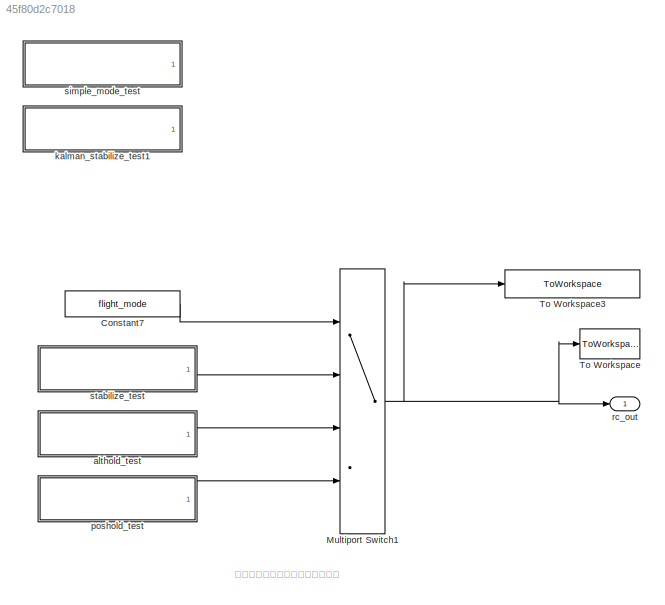
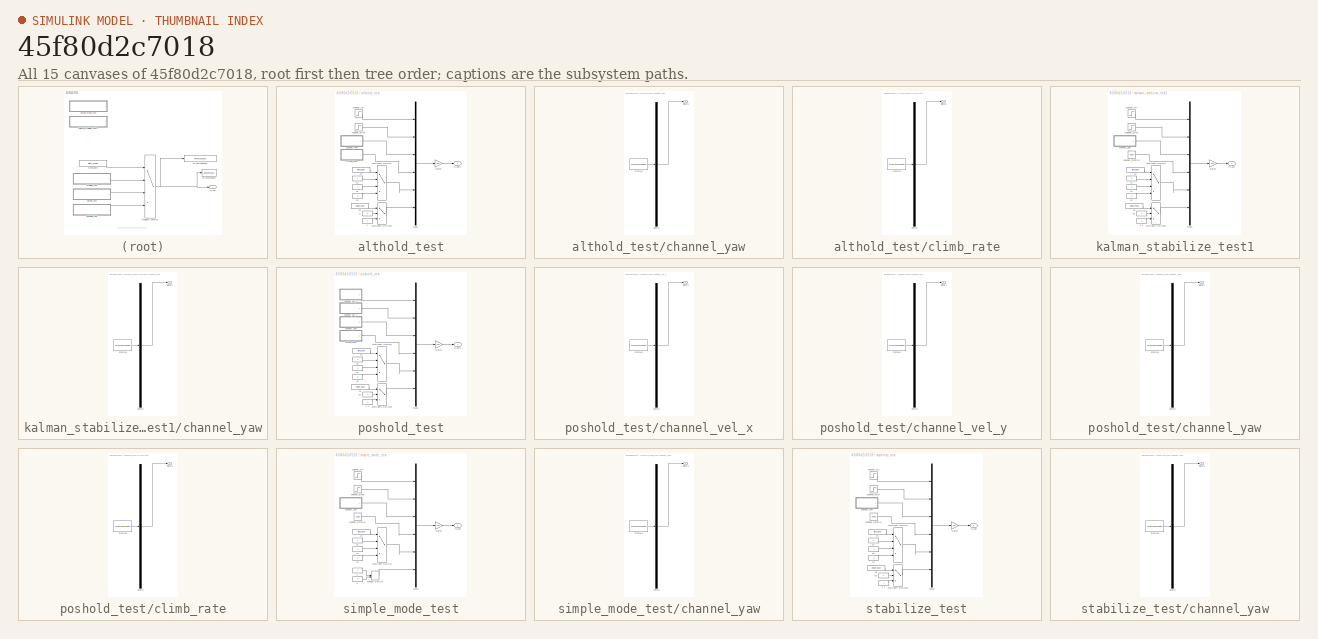
[diagram: thumbnail index - all 15 canvases of the model, root first then tree order]
MODEL slx_45f80d2c7018
KIND model
BLOCK [Constant] Constant7
  SampleTime = 0.0025
  Value = flight_mode
BLOCK [MultiPortSwitch] Multiport Switch1
  InputSameDT = off
  Ports = [4, 1]
  SaturateOnIntegerOverflow = off
BLOCK [ToWorkspace] To Workspace
  MaxDataPoints = inf
  Ports = [1]
  SampleTime = -1
  SaveFormat = Structure
  VariableName = simout
BLOCK [ToWorkspace] To Workspace3
  MaxDataPoints = inf
  Ports = [1]
  SampleTime = -1
  SaveFormat = Structure
  VariableName = rc_out
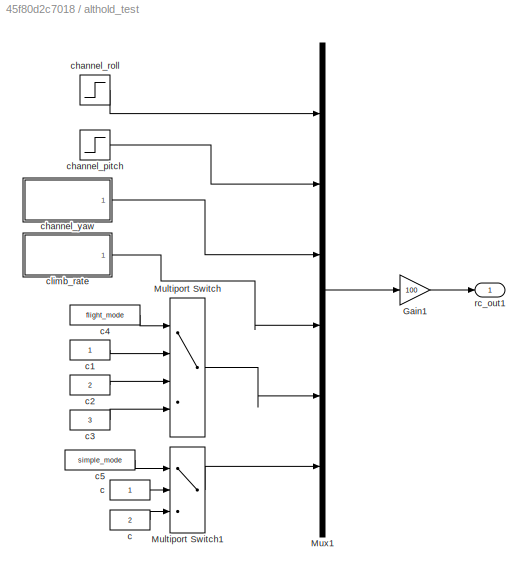
BLOCK [SubSystem] althold_test
  Ports = [0, 1]
  RequestExecContextInheritance = off
BLOCK [Gain] althold_test/Gain1
  Gain = 100
  OutDataTypeStr = Inherit: Inherit via internal rule
  ParamDataTypeStr = Inherit: Inherit via internal rule
  SampleTime = 0.0025
  SaturateOnIntegerOverflow = off
BLOCK [MultiPortSwitch] althold_test/Multiport Switch
  InputSameDT = off
  Ports = [4, 1]
  SaturateOnIntegerOverflow = off
BLOCK [MultiPortSwitch] althold_test/Multiport Switch1
  InputSameDT = off
  Inputs = 2
  Ports = [3, 1]
  SaturateOnIntegerOverflow = off
BLOCK [Mux] althold_test/Mux1
  DisplayOption = bar
  Inputs = 6
  Ports = [6, 1]
BLOCK [Constant] althold_test/c
  SampleTime = -1
BLOCK [Constant] althold_test/c 
  SampleTime = -1
  Value = 2
BLOCK [Constant] althold_test/c1
  SampleTime = -1
BLOCK [Constant] althold_test/c2
  SampleTime = -1
  Value = 2
BLOCK [Constant] althold_test/c3
  SampleTime = -1
  Value = 3
BLOCK [Constant] althold_test/c4
  SampleTime = -1
  Value = flight_mode
BLOCK [Constant] althold_test/c5
  SampleTime = -1
  Value = simple_mode
BLOCK [Step] althold_test/channel_pitch
  After = 15
  SampleTime = 0.0025
  Time = 2.5
BLOCK [Step] althold_test/channel_roll
  After = 25
  SampleTime = 0.0025
  Time = 2
BLOCK [SubSystem] althold_test/channel_yaw
  ClipboardFcn = sigbuilder_block('clipboard');
  CloseFcn = sigbuilder_block('close');
  ContinueFcn = sigbuilder_block('continue')
  CopyFcn = sigbuilder_block('copy');
  DeleteFcn = sigbuilder_block('delete');
  LoadFcn = sigbuilder_block('load');
  MaskHideContents = on
  ModelCloseFcn = sigbuilder_block('modelClose');
  NameChangeFcn = sigbuilder_block('namechange');
  OpenFcn = sigbuilder_block('open',[437.25 117.75 550.5 393.75 ]);
  PauseFcn = sigbuilder_block('pause')
  Ports = [0, 1]
  PreSaveFcn = sigbuilder_block('preSave');
  RequestExecContextInheritance = off
  StartFcn = sigbuilder_block('start');
  StopFcn = sigbuilder_block('stop');
  Tag = STV Subsys
BLOCK [Demux] althold_test/channel_yaw/Demux
  Outputs = 1
  Ports = [1, 1]
  Tag = STV Demux
BLOCK [FromWorkspace] althold_test/channel_yaw/FromWs
  SampleTime = 0
  Tag = STV FromWs
  VariableName = tuvar
  ZeroCross = on
BLOCK [Outport] althold_test/channel_yaw/Signal 1
  IconDisplay = Port number
  Tag = STV Outport
BLOCK [SubSystem] althold_test/climb_rate
  ClipboardFcn = sigbuilder_block('clipboard');
  CloseFcn = sigbuilder_block('close');
  ContinueFcn = sigbuilder_block('continue')
  CopyFcn = sigbuilder_block('copy');
  DeleteFcn = sigbuilder_block('delete');
  LoadFcn = sigbuilder_block('load');
  MaskHideContents = on
  ModelCloseFcn = sigbuilder_block('modelClose');
  NameChangeFcn = sigbuilder_block('namechange');
  OpenFcn = sigbuilder_block('open',[437.25 117.75 550.5 393.75 ]);
  PauseFcn = sigbuilder_block('pause')
  Ports = [0, 1]
  PreSaveFcn = sigbuilder_block('preSave');
  RequestExecContextInheritance = off
  StartFcn = sigbuilder_block('start');
  StopFcn = sigbuilder_block('stop');
  Tag = STV Subsys
BLOCK [Demux] althold_test/climb_rate/Demux
  Outputs = 1
  Ports = [1, 1]
  Tag = STV Demux
BLOCK [FromWorkspace] althold_test/climb_rate/FromWs
  SampleTime = 0
  Tag = STV FromWs
  VariableName = tuvar
  ZeroCross = on
BLOCK [Outport] althold_test/climb_rate/Signal 1
  IconDisplay = Port number
  Tag = STV Outport
BLOCK [Outport] althold_test/rc_out1
  IconDisplay = Port number
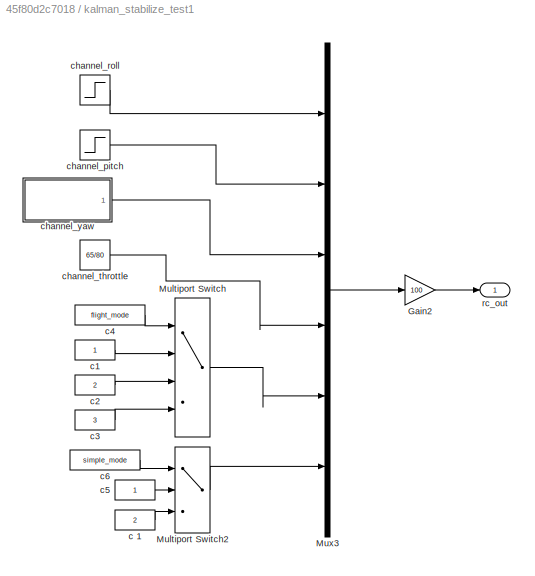
BLOCK [SubSystem] kalman_stabilize_test1
  Ports = [0, 1]
  RequestExecContextInheritance = off
BLOCK [Gain] kalman_stabilize_test1/Gain2
  Gain = 100
  OutDataTypeStr = Inherit: Inherit via internal rule
  ParamDataTypeStr = Inherit: Inherit via internal rule
  SampleTime = 0.0025
  SaturateOnIntegerOverflow = off
BLOCK [MultiPortSwitch] kalman_stabilize_test1/Multiport Switch
  InputSameDT = off
  Ports = [4, 1]
  SaturateOnIntegerOverflow = off
BLOCK [MultiPortSwitch] kalman_stabilize_test1/Multiport Switch2
  InputSameDT = off
  Inputs = 2
  Ports = [3, 1]
  SaturateOnIntegerOverflow = off
BLOCK [Mux] kalman_stabilize_test1/Mux3
  DisplayOption = bar
  Inputs = 6
  Ports = [6, 1]
BLOCK [Constant] kalman_stabilize_test1/c 1
  SampleTime = -1
  Value = 2
BLOCK [Constant] kalman_stabilize_test1/c1
  SampleTime = -1
BLOCK [Constant] kalman_stabilize_test1/c2
  SampleTime = -1
  Value = 2
BLOCK [Constant] kalman_stabilize_test1/c3
  SampleTime = -1
  Value = 3
BLOCK [Constant] kalman_stabilize_test1/c4
  SampleTime = -1
  Value = flight_mode
BLOCK [Constant] kalman_stabilize_test1/c5
  SampleTime = -1
BLOCK [Constant] kalman_stabilize_test1/c6
  SampleTime = -1
  Value = simple_mode
BLOCK [Step] kalman_stabilize_test1/channel_pitch
  After = 35
  SampleTime = 0.0025
  Time = 2.5
BLOCK [Step] kalman_stabilize_test1/channel_roll
  After = 25
  SampleTime = 0.0025
  Time = 2
BLOCK [Constant] kalman_stabilize_test1/channel_throttle
  SampleTime = -1
  Value = 65/80
BLOCK [SubSystem] kalman_stabilize_test1/channel_yaw
  ClipboardFcn = sigbuilder_block('clipboard');
  CloseFcn = sigbuilder_block('close');
  ContinueFcn = sigbuilder_block('continue')
  CopyFcn = sigbuilder_block('copy');
  DeleteFcn = sigbuilder_block('delete');
  LoadFcn = sigbuilder_block('load');
  MaskHideContents = on
  ModelCloseFcn = sigbuilder_block('modelClose');
  NameChangeFcn = sigbuilder_block('namechange');
  OpenFcn = sigbuilder_block('open',[437.25 117.75 550.5 393.75 ]);
  PauseFcn = sigbuilder_block('pause')
  Ports = [0, 1]
  PreSaveFcn = sigbuilder_block('preSave');
  RequestExecContextInheritance = off
  StartFcn = sigbuilder_block('start');
  StopFcn = sigbuilder_block('stop');
  Tag = STV Subsys
BLOCK [Demux] kalman_stabilize_test1/channel_yaw/Demux
  Outputs = 1
  Ports = [1, 1]
  Tag = STV Demux
BLOCK [FromWorkspace] kalman_stabilize_test1/channel_yaw/FromWs
  SampleTime = 0
  Tag = STV FromWs
  VariableName = tuvar
  ZeroCross = on
BLOCK [Outport] kalman_stabilize_test1/channel_yaw/Signal 1
  IconDisplay = Port number
  Tag = STV Outport
BLOCK [Outport] kalman_stabilize_test1/rc_out
  IconDisplay = Port number
BLOCK [SubSystem] poshold_test
  Ports = [0, 1]
  RequestExecContextInheritance = off
BLOCK [Gain] poshold_test/Gain1
  Gain = 100
  OutDataTypeStr = Inherit: Inherit via internal rule
  ParamDataTypeStr = Inherit: Inherit via internal rule
  SampleTime = 0.0025
  SaturateOnIntegerOverflow = off
BLOCK [MultiPortSwitch] poshold_test/Multiport Switch
  InputSameDT = off
  Ports = [4, 1]
  SaturateOnIntegerOverflow = off
BLOCK [MultiPortSwitch] poshold_test/Multiport Switch2
  InputSameDT = off
  Inputs = 2
  Ports = [3, 1]
  SaturateOnIntegerOverflow = off
BLOCK [Mux] poshold_test/Mux1
  DisplayOption = bar
  Inputs = 6
  Ports = [6, 1]
BLOCK [Constant] poshold_test/c 1
  SampleTime = -1
  Value = 2
BLOCK [Constant] poshold_test/c1
  SampleTime = -1
BLOCK [Constant] poshold_test/c2
  SampleTime = -1
  Value = 2
BLOCK [Constant] poshold_test/c3
  SampleTime = -1
  Value = 3
BLOCK [Constant] poshold_test/c4
  SampleTime = -1
  Value = flight_mode
BLOCK [Constant] poshold_test/c5
  SampleTime = -1
BLOCK [Constant] poshold_test/c6
  SampleTime = -1
  Value = simple_mode
BLOCK [SubSystem] poshold_test/channel_vel_x
  ClipboardFcn = sigbuilder_block('clipboard');
  CloseFcn = sigbuilder_block('close');
  ContinueFcn = sigbuilder_block('continue')
  CopyFcn = sigbuilder_block('copy');
  DeleteFcn = sigbuilder_block('delete');
  LoadFcn = sigbuilder_block('load');
  MaskHideContents = on
  ModelCloseFcn = sigbuilder_block('modelClose');
  NameChangeFcn = sigbuilder_block('namechange');
  OpenFcn = sigbuilder_block('open',[437.25 117.75 550.5 393.75 ]);
  PauseFcn = sigbuilder_block('pause')
  Ports = [0, 1]
  PreSaveFcn = sigbuilder_block('preSave');
  RequestExecContextInheritance = off
  StartFcn = sigbuilder_block('start');
  StopFcn = sigbuilder_block('stop');
  Tag = STV Subsys
BLOCK [Demux] poshold_test/channel_vel_x/Demux
  Outputs = 1
  Ports = [1, 1]
  Tag = STV Demux
BLOCK [FromWorkspace] poshold_test/channel_vel_x/FromWs
  SampleTime = 0
  Tag = STV FromWs
  VariableName = tuvar
  ZeroCross = on
BLOCK [Outport] poshold_test/channel_vel_x/Signal 1
  IconDisplay = Port number
  Tag = STV Outport
BLOCK [SubSystem] poshold_test/channel_vel_y 
  ClipboardFcn = sigbuilder_block('clipboard');
  CloseFcn = sigbuilder_block('close');
  ContinueFcn = sigbuilder_block('continue')
  CopyFcn = sigbuilder_block('copy');
  DeleteFcn = sigbuilder_block('delete');
  LoadFcn = sigbuilder_block('load');
  MaskHideContents = on
  ModelCloseFcn = sigbuilder_block('modelClose');
  NameChangeFcn = sigbuilder_block('namechange');
  OpenFcn = sigbuilder_block('open',[437.25 117.75 550.5 393.75 ]);
  PauseFcn = sigbuilder_block('pause')
  Ports = [0, 1]
  PreSaveFcn = sigbuilder_block('preSave');
  RequestExecContextInheritance = off
  StartFcn = sigbuilder_block('start');
  StopFcn = sigbuilder_block('stop');
  Tag = STV Subsys
BLOCK [Demux] poshold_test/channel_vel_y /Demux
  Outputs = 1
  Ports = [1, 1]
  Tag = STV Demux
BLOCK [FromWorkspace] poshold_test/channel_vel_y /FromWs
  SampleTime = 0
  Tag = STV FromWs
  VariableName = tuvar
  ZeroCross = on
BLOCK [Outport] poshold_test/channel_vel_y /Signal 1
  IconDisplay = Port number
  Tag = STV Outport
BLOCK [SubSystem] poshold_test/channel_yaw
  ClipboardFcn = sigbuilder_block('clipboard');
  CloseFcn = sigbuilder_block('close');
  ContinueFcn = sigbuilder_block('continue')
  CopyFcn = sigbuilder_block('copy');
  DeleteFcn = sigbuilder_block('delete');
  LoadFcn = sigbuilder_block('load');
  MaskHideContents = on
  ModelCloseFcn = sigbuilder_block('modelClose');
  NameChangeFcn = sigbuilder_block('namechange');
  OpenFcn = sigbuilder_block('open',[437.25 117.75 550.5 393.75 ]);
  PauseFcn = sigbuilder_block('pause')
  Ports = [0, 1]
  PreSaveFcn = sigbuilder_block('preSave');
  RequestExecContextInheritance = off
  StartFcn = sigbuilder_block('start');
  StopFcn = sigbuilder_block('stop');
  Tag = STV Subsys
BLOCK [Demux] poshold_test/channel_yaw/Demux
  Outputs = 1
  Ports = [1, 1]
  Tag = STV Demux
BLOCK [FromWorkspace] poshold_test/channel_yaw/FromWs
  SampleTime = 0
  Tag = STV FromWs
  VariableName = tuvar
  ZeroCross = on
BLOCK [Outport] poshold_test/channel_yaw/Signal 1
  IconDisplay = Port number
  Tag = STV Outport
BLOCK [SubSystem] poshold_test/climb_rate
  ClipboardFcn = sigbuilder_block('clipboard');
  CloseFcn = sigbuilder_block('close');
  ContinueFcn = sigbuilder_block('continue')
  CopyFcn = sigbuilder_block('copy');
  DeleteFcn = sigbuilder_block('delete');
  LoadFcn = sigbuilder_block('load');
  MaskHideContents = on
  ModelCloseFcn = sigbuilder_block('modelClose');
  NameChangeFcn = sigbuilder_block('namechange');
  OpenFcn = sigbuilder_block('open',[437.25 117.75 550.5 393.75 ]);
  PauseFcn = sigbuilder_block('pause')
  Ports = [0, 1]
  PreSaveFcn = sigbuilder_block('preSave');
  RequestExecContextInheritance = off
  StartFcn = sigbuilder_block('start');
  StopFcn = sigbuilder_block('stop');
  Tag = STV Subsys
BLOCK [Demux] poshold_test/climb_rate/Demux
  Outputs = 1
  Ports = [1, 1]
  Tag = STV Demux
BLOCK [FromWorkspace] poshold_test/climb_rate/FromWs
  SampleTime = 0
  Tag = STV FromWs
  VariableName = tuvar
  ZeroCross = on
BLOCK [Outport] poshold_test/climb_rate/Signal 1
  IconDisplay = Port number
  Tag = STV Outport
BLOCK [Outport] poshold_test/rc_out1
  IconDisplay = Port number
BLOCK [Outport] rc_out
  IconDisplay = Port number
BLOCK [SubSystem] simple_mode_test
  Ports = [0, 1]
  RequestExecContextInheritance = off
BLOCK [Gain] simple_mode_test/Gain2
  Gain = 100
  OutDataTypeStr = Inherit: Inherit via internal rule
  ParamDataTypeStr = Inherit: Inherit via internal rule
  SampleTime = 0.0025
  SaturateOnIntegerOverflow = off
BLOCK [ManualSwitch] simple_mode_test/Manual Switch
  CurrentSetting = 0
BLOCK [MultiPortSwitch] simple_mode_test/Multiport Switch
  InputSameDT = off
  Ports = [4, 1]
  SaturateOnIntegerOverflow = off
BLOCK [Mux] simple_mode_test/Mux3
  DisplayOption = bar
  Inputs = 6
  Ports = [6, 1]
BLOCK [Constant] simple_mode_test/c
  SampleTime = -1
BLOCK [Constant] simple_mode_test/c 
  SampleTime = -1
  Value = 2
BLOCK [Constant] simple_mode_test/c1
  SampleTime = -1
BLOCK [Constant] simple_mode_test/c2
  SampleTime = -1
  Value = 2
BLOCK [Constant] simple_mode_test/c3
  SampleTime = -1
  Value = 3
BLOCK [Constant] simple_mode_test/c4
  SampleTime = -1
  Value = flight_mode
BLOCK [Step] simple_mode_test/channel_pitch
  After = 0
  SampleTime = 0.0025
  Time = 2.5
BLOCK [Step] simple_mode_test/channel_roll
  After = 25
  SampleTime = 0.0025
  Time = 5
BLOCK [Constant] simple_mode_test/channel_throttle
  SampleTime = -1
  Value = 65/80
BLOCK [SubSystem] simple_mode_test/channel_yaw
  ClipboardFcn = sigbuilder_block('clipboard');
  CloseFcn = sigbuilder_block('close');
  ContinueFcn = sigbuilder_block('continue')
  CopyFcn = sigbuilder_block('copy');
  DeleteFcn = sigbuilder_block('delete');
  LoadFcn = sigbuilder_block('load');
  MaskHideContents = on
  ModelCloseFcn = sigbuilder_block('modelClose');
  NameChangeFcn = sigbuilder_block('namechange');
  OpenFcn = sigbuilder_block('open',[437.25 117.75 550.5 393.75 ]);
  PauseFcn = sigbuilder_block('pause')
  Ports = [0, 1]
  PreSaveFcn = sigbuilder_block('preSave');
  RequestExecContextInheritance = off
  StartFcn = sigbuilder_block('start');
  StopFcn = sigbuilder_block('stop');
  Tag = STV Subsys
BLOCK [Demux] simple_mode_test/channel_yaw/Demux
  Outputs = 1
  Ports = [1, 1]
  Tag = STV Demux
BLOCK [FromWorkspace] simple_mode_test/channel_yaw/FromWs
  SampleTime = 0
  Tag = STV FromWs
  VariableName = tuvar
  ZeroCross = on
BLOCK [Outport] simple_mode_test/channel_yaw/Signal 1
  IconDisplay = Port number
  Tag = STV Outport
BLOCK [Outport] simple_mode_test/rc_out
  IconDisplay = Port number
BLOCK [SubSystem] stabilize_test
  Ports = [0, 1]
  RequestExecContextInheritance = off
BLOCK [Gain] stabilize_test/Gain2
  Gain = 100
  OutDataTypeStr = Inherit: Inherit via internal rule
  ParamDataTypeStr = Inherit: Inherit via internal rule
  SampleTime = 0.0025
  SaturateOnIntegerOverflow = off
BLOCK [MultiPortSwitch] stabilize_test/Multiport Switch
  InputSameDT = off
  Ports = [4, 1]
  SaturateOnIntegerOverflow = off
BLOCK [MultiPortSwitch] stabilize_test/Multiport Switch2
  InputSameDT = off
  Inputs = 2
  Ports = [3, 1]
  SaturateOnIntegerOverflow = off
BLOCK [Mux] stabilize_test/Mux3
  DisplayOption = bar
  Inputs = 6
  Ports = [6, 1]
BLOCK [Constant] stabilize_test/c 1
  SampleTime = -1
  Value = 2
BLOCK [Constant] stabilize_test/c1
  SampleTime = -1
BLOCK [Constant] stabilize_test/c2
  SampleTime = -1
  Value = 2
BLOCK [Constant] stabilize_test/c3
  SampleTime = -1
  Value = 3
BLOCK [Constant] stabilize_test/c4
  SampleTime = -1
  Value = flight_mode
BLOCK [Constant] stabilize_test/c5
  SampleTime = -1
BLOCK [Constant] stabilize_test/c6
  SampleTime = -1
  Value = simple_mode
BLOCK [Step] stabilize_test/channel_pitch
  After = 15
  SampleTime = 0.0025
  Time = 2.5
BLOCK [Step] stabilize_test/channel_roll
  After = -25
  SampleTime = 0.0025
  Time = 2
BLOCK [Constant] stabilize_test/channel_throttle
  SampleTime = -1
  Value = 65/80
BLOCK [SubSystem] stabilize_test/channel_yaw
  ClipboardFcn = sigbuilder_block('clipboard');
  CloseFcn = sigbuilder_block('close');
  ContinueFcn = sigbuilder_block('continue')
  CopyFcn = sigbuilder_block('copy');
  DeleteFcn = sigbuilder_block('delete');
  LoadFcn = sigbuilder_block('load');
  MaskHideContents = on
  ModelCloseFcn = sigbuilder_block('modelClose');
  NameChangeFcn = sigbuilder_block('namechange');
  OpenFcn = sigbuilder_block('open',[437.25 117.75 550.5 393.75 ]);
  PauseFcn = sigbuilder_block('pause')
  Ports = [0, 1]
  PreSaveFcn = sigbuilder_block('preSave');
  RequestExecContextInheritance = off
  StartFcn = sigbuilder_block('start');
  StopFcn = sigbuilder_block('stop');
  Tag = STV Subsys
BLOCK [Demux] stabilize_test/channel_yaw/Demux
  Outputs = 1
  Ports = [1, 1]
  Tag = STV Demux
BLOCK [FromWorkspace] stabilize_test/channel_yaw/FromWs
  SampleTime = 0
  Tag = STV FromWs
  VariableName = tuvar
  ZeroCross = on
BLOCK [Outport] stabilize_test/channel_yaw/Signal 1
  IconDisplay = Port number
  Tag = STV Outport
BLOCK [Outport] stabilize_test/rc_out
  IconDisplay = Port number
ANNOTATION (root): 根据不同模式选择不同的测试数据
LINE Constant7:1 -> Multiport Switch1:1
NET Multiport Switch1:1 -> To Workspace3:1, To Workspace:1, rc_out:1
LINE althold_test/Gain1:1 -> althold_test/rc_out1:1
LINE althold_test/Multiport Switch1:1 -> althold_test/Mux1:6
LINE althold_test/Multiport Switch:1 -> althold_test/Mux1:5
LINE althold_test/Mux1:1 -> althold_test/Gain1:1
LINE althold_test/c :1 -> althold_test/Multiport Switch1:3
LINE althold_test/c1:1 -> althold_test/Multiport Switch:2
LINE althold_test/c2:1 -> althold_test/Multiport Switch:3
LINE althold_test/c3:1 -> althold_test/Multiport Switch:4
LINE althold_test/c4:1 -> althold_test/Multiport Switch:1
LINE althold_test/c5:1 -> althold_test/Multiport Switch1:1
LINE althold_test/c:1 -> althold_test/Multiport Switch1:2
LINE althold_test/channel_pitch:1 -> althold_test/Mux1:2
LINE althold_test/channel_roll:1 -> althold_test/Mux1:1
LINE althold_test/channel_yaw:1 -> althold_test/Mux1:3
LINE althold_test/climb_rate:1 -> althold_test/Mux1:4
LINE althold_test:1 -> Multiport Switch1:3
LINE kalman_stabilize_test1/Gain2:1 -> kalman_stabilize_test1/rc_out:1
LINE kalman_stabilize_test1/Multiport Switch2:1 -> kalman_stabilize_test1/Mux3:6
LINE kalman_stabilize_test1/Multiport Switch:1 -> kalman_stabilize_test1/Mux3:5
LINE kalman_stabilize_test1/Mux3:1 -> kalman_stabilize_test1/Gain2:1
LINE kalman_stabilize_test1/c 1:1 -> kalman_stabilize_test1/Multiport Switch2:3
LINE kalman_stabilize_test1/c1:1 -> kalman_stabilize_test1/Multiport Switch:2
LINE kalman_stabilize_test1/c2:1 -> kalman_stabilize_test1/Multiport Switch:3
LINE kalman_stabilize_test1/c3:1 -> kalman_stabilize_test1/Multiport Switch:4
LINE kalman_stabilize_test1/c4:1 -> kalman_stabilize_test1/Multiport Switch:1
LINE kalman_stabilize_test1/c5:1 -> kalman_stabilize_test1/Multiport Switch2:2
LINE kalman_stabilize_test1/c6:1 -> kalman_stabilize_test1/Multiport Switch2:1
LINE kalman_stabilize_test1/channel_pitch:1 -> kalman_stabilize_test1/Mux3:2
LINE kalman_stabilize_test1/channel_roll:1 -> kalman_stabilize_test1/Mux3:1
LINE kalman_stabilize_test1/channel_throttle:1 -> kalman_stabilize_test1/Mux3:4
LINE kalman_stabilize_test1/channel_yaw:1 -> kalman_stabilize_test1/Mux3:3
LINE poshold_test/Gain1:1 -> poshold_test/rc_out1:1
LINE poshold_test/Multiport Switch2:1 -> poshold_test/Mux1:6
LINE poshold_test/Multiport Switch:1 -> poshold_test/Mux1:5
LINE poshold_test/Mux1:1 -> poshold_test/Gain1:1
LINE poshold_test/c 1:1 -> poshold_test/Multiport Switch2:3
LINE poshold_test/c1:1 -> poshold_test/Multiport Switch:2
LINE poshold_test/c2:1 -> poshold_test/Multiport Switch:3
LINE poshold_test/c3:1 -> poshold_test/Multiport Switch:4
LINE poshold_test/c4:1 -> poshold_test/Multiport Switch:1
LINE poshold_test/c5:1 -> poshold_test/Multiport Switch2:2
LINE poshold_test/c6:1 -> poshold_test/Multiport Switch2:1
LINE poshold_test/channel_vel_x:1 -> poshold_test/Mux1:1
LINE poshold_test/channel_vel_y :1 -> poshold_test/Mux1:2
LINE poshold_test/channel_yaw:1 -> poshold_test/Mux1:3
LINE poshold_test/climb_rate:1 -> poshold_test/Mux1:4
LINE poshold_test:1 -> Multiport Switch1:4
LINE simple_mode_test/Gain2:1 -> simple_mode_test/rc_out:1
LINE simple_mode_test/Manual Switch:1 -> simple_mode_test/Mux3:6
LINE simple_mode_test/Multiport Switch:1 -> simple_mode_test/Mux3:5
LINE simple_mode_test/Mux3:1 -> simple_mode_test/Gain2:1
LINE simple_mode_test/c :1 -> simple_mode_test/Manual Switch:2
LINE simple_mode_test/c1:1 -> simple_mode_test/Multiport Switch:2
LINE simple_mode_test/c2:1 -> simple_mode_test/Multiport Switch:3
LINE simple_mode_test/c3:1 -> simple_mode_test/Multiport Switch:4
LINE simple_mode_test/c4:1 -> simple_mode_test/Multiport Switch:1
LINE simple_mode_test/c:1 -> simple_mode_test/Manual Switch:1
LINE simple_mode_test/channel_pitch:1 -> simple_mode_test/Mux3:2
LINE simple_mode_test/channel_roll:1 -> simple_mode_test/Mux3:1
LINE simple_mode_test/channel_throttle:1 -> simple_mode_test/Mux3:4
LINE simple_mode_test/channel_yaw:1 -> simple_mode_test/Mux3:3
LINE stabilize_test/Gain2:1 -> stabilize_test/rc_out:1
LINE stabilize_test/Multiport Switch2:1 -> stabilize_test/Mux3:6
LINE stabilize_test/Multiport Switch:1 -> stabilize_test/Mux3:5
LINE stabilize_test/Mux3:1 -> stabilize_test/Gain2:1
LINE stabilize_test/c 1:1 -> stabilize_test/Multiport Switch2:3
LINE stabilize_test/c1:1 -> stabilize_test/Multiport Switch:2
LINE stabilize_test/c2:1 -> stabilize_test/Multiport Switch:3
LINE stabilize_test/c3:1 -> stabilize_test/Multiport Switch:4
LINE stabilize_test/c4:1 -> stabilize_test/Multiport Switch:1
LINE stabilize_test/c5:1 -> stabilize_test/Multiport Switch2:2
LINE stabilize_test/c6:1 -> stabilize_test/Multiport Switch2:1
LINE stabilize_test/channel_pitch:1 -> stabilize_test/Mux3:2
LINE stabilize_test/channel_roll:1 -> stabilize_test/Mux3:1
LINE stabilize_test/channel_throttle:1 -> stabilize_test/Mux3:4
LINE stabilize_test/channel_yaw:1 -> stabilize_test/Mux3:3
LINE stabilize_test:1 -> Multiport Switch1:2
note: NET lines group one-source signal fan-out (src -> all destinations, sorted); 1:1 wires keep LINE
